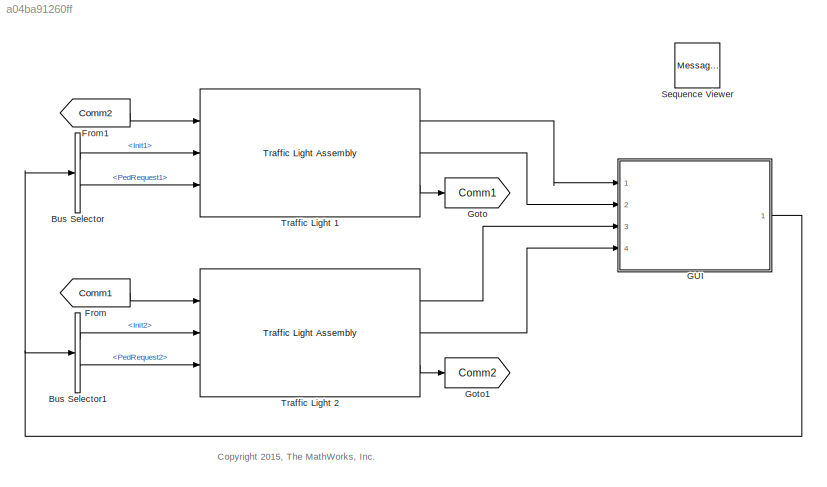
MODEL slx_a04ba91260ff
KIND model
CONFIG AbsTol = auto
CONFIG EnableMultiTasking = on
CONFIG FixedStep = .2
CONFIG InitFcn = tl_gui('reset', bdroot);
CONFIG MaxStep = auto
CONFIG MinStep = auto
CONFIG PostLoadFcn = tl_gui('init', bdroot);
CONFIG RelTol = 1e-3
CONFIG SampleTimeConstraint = Unconstrained
CONFIG Solver = FixedStepDiscrete
CONFIG SolverName = FixedStepDiscrete
CONFIG StartTime = 0.0
CONFIG StopTime = inf
BLOCK [BusSelector] Bus Selector
  OutputAsBus = off
  OutputSignals = Init1,PedRequest1
  Ports = [1, 2]
BLOCK [BusSelector] Bus Selector1
  OutputAsBus = off
  OutputSignals = Init2,PedRequest2
  Ports = [1, 2]
BLOCK [From] From
  GotoTag = Comm1
BLOCK [From] From1
  GotoTag = Comm2
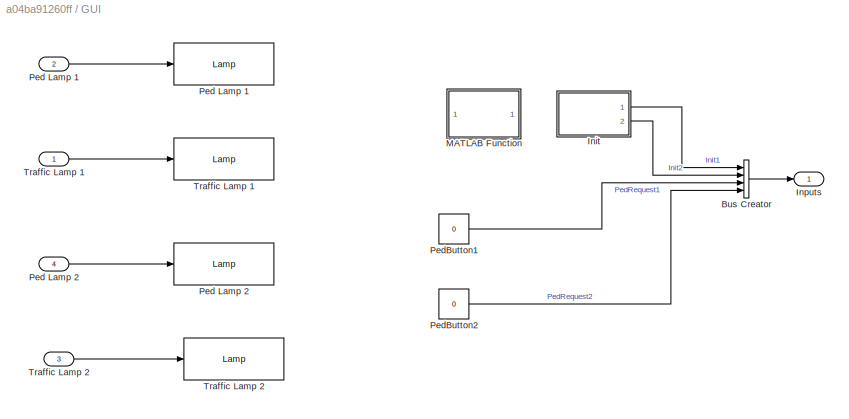
BLOCK [SubSystem] GUI
  Ports = [4, 1]
  RequestExecContextInheritance = off
  Variant = off
BLOCK [Reference] GUI/ Ped Lamp 1  REF=sf_msg_traffic_light_lib/ Lamp  (lib defined in slx_09fa599723ce)
  Ports = [1]
  SourceBlock = sf_msg_traffic_light_lib/ Lamp
  SourceProductBaseCode = SF
  SourceProductName = Stateflow
BLOCK [Reference] GUI/ Ped Lamp 2  REF=sf_msg_traffic_light_lib/ Lamp  (lib defined in slx_09fa599723ce)
  Ports = [1]
  SourceBlock = sf_msg_traffic_light_lib/ Lamp
  SourceProductBaseCode = SF
  SourceProductName = Stateflow
BLOCK [Reference] GUI/ Traffic Lamp 1  REF=sf_msg_traffic_light_lib/ Lamp  (lib defined in slx_09fa599723ce)
  Ports = [1]
  SourceBlock = sf_msg_traffic_light_lib/ Lamp
  SourceProductBaseCode = SF
  SourceProductName = Stateflow
BLOCK [Reference] GUI/ Traffic Lamp 2  REF=sf_msg_traffic_light_lib/ Lamp  (lib defined in slx_09fa599723ce)
  Ports = [1]
  SourceBlock = sf_msg_traffic_light_lib/ Lamp
  SourceProductBaseCode = SF
  SourceProductName = Stateflow
BLOCK [BusCreator] GUI/Bus Creator
  DisplayOption = bar
  InheritFromInputs = on
  Inputs = 4
  Ports = [4, 1]
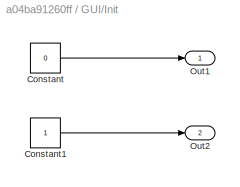
BLOCK [SubSystem] GUI/Init
  Ports = [0, 2]
  RequestExecContextInheritance = off
  Variant = off
BLOCK [Constant] GUI/Init/Constant
  Value = 0
BLOCK [Constant] GUI/Init/Constant1
BLOCK [Outport] GUI/Init/Out1
  IconDisplay = Port number
BLOCK [Outport] GUI/Init/Out2
  IconDisplay = Port number
  Port = 2
BLOCK [Outport] GUI/Inputs
  IconDisplay = Port number
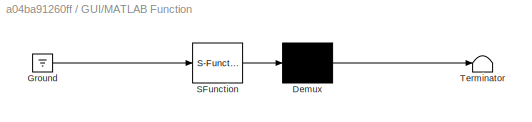
BLOCK [SubSystem] GUI/MATLAB Function
  ErrorFcn = Stateflow.Translate.translate
  PermitHierarchicalResolution = ExplicitOnly
  Ports = []
  RequestExecContextInheritance = off
  SFBlockType = MATLAB Function
  TreatAsAtomicUnit = on
  Variant = off
BLOCK [Demux] GUI/MATLAB Function/ Demux 
  Outputs = 1
  Ports = [1, 1]
BLOCK [Ground] GUI/MATLAB Function/ Ground 
BLOCK [S-Function] GUI/MATLAB Function/ SFunction 
  EnableBusSupport = off
  FunctionName = sf_sfun
  PortCounts = [1 1]
  Ports = [1, 1]
  SFcnIsStateOwnerBlock = off
  SFunctionDeploymentMode = off
  Tag = Stateflow S-Function sf_msg_traffic_light 2
BLOCK [Terminator] GUI/MATLAB Function/ Terminator 
BLOCK [Inport] GUI/Ped Lamp 1
  IconDisplay = Port number
  Port = 2
BLOCK [Inport] GUI/Ped Lamp 2
  IconDisplay = Port number
  Port = 4
BLOCK [Constant] GUI/PedButton1
  Value = 0
BLOCK [Constant] GUI/PedButton2
  Value = 0
BLOCK [Inport] GUI/Traffic Lamp 1
  IconDisplay = Port number
BLOCK [Inport] GUI/Traffic Lamp 2
  IconDisplay = Port number
  Port = 3
BLOCK [Goto] Goto
  GotoTag = Comm1
BLOCK [Goto] Goto1
  GotoTag = Comm2
BLOCK [MessageViewer] Sequence Viewer
BLOCK [Reference] Traffic Light 1  REF=sf_msg_traffic_light_lib/Traffic Light Assembly  (lib defined in slx_09fa599723ce)
  Ports = [3, 3]
  SourceBlock = sf_msg_traffic_light_lib/Traffic Light Assembly
  SourceProductBaseCode = SF
  SourceProductName = Stateflow
  SourceType = SubSystem
BLOCK [Reference] Traffic Light 2  REF=sf_msg_traffic_light_lib/Traffic Light Assembly  (lib defined in slx_09fa599723ce)
  Ports = [3, 3]
  SourceBlock = sf_msg_traffic_light_lib/Traffic Light Assembly
  SourceProductBaseCode = SF
  SourceProductName = Stateflow
  SourceType = SubSystem
ANNOTATION (root): <copyright redacted>
LINE Bus Selector1:1 -> Traffic Light 2:2
LINE Bus Selector1:2 -> Traffic Light 2:3
LINE Bus Selector:1 -> Traffic Light 1:2
LINE Bus Selector:2 -> Traffic Light 1:3
LINE From1:1 -> Traffic Light 1:1
LINE From:1 -> Traffic Light 2:1
LINE GUI/Bus Creator:1 -> GUI/Inputs:1
LINE GUI/Init/Constant1:1 -> GUI/Init/Out2:1
LINE GUI/Init/Constant:1 -> GUI/Init/Out1:1
LINE GUI/Init:1 -> GUI/Bus Creator:1
LINE GUI/Init:2 -> GUI/Bus Creator:2
LINE GUI/Ped Lamp 1:1 -> GUI/ Ped Lamp 1:1
LINE GUI/Ped Lamp 2:1 -> GUI/ Ped Lamp 2:1
LINE GUI/PedButton1:1 -> GUI/Bus Creator:3
LINE GUI/PedButton2:1 -> GUI/Bus Creator:4
LINE GUI/Traffic Lamp 1:1 -> GUI/ Traffic Lamp 1:1
LINE GUI/Traffic Lamp 2:1 -> GUI/ Traffic Lamp 2:1
NET GUI:1 -> Bus Selector1:1, Bus Selector:1
LINE Traffic Light 1:1 -> GUI:1
LINE Traffic Light 1:2 -> GUI:2
LINE Traffic Light 1:3 -> Goto:1
LINE Traffic Light 2:1 -> GUI:3
LINE Traffic Light 2:2 -> GUI:4
LINE Traffic Light 2:3 -> Goto1:1
note: NET lines group one-source signal fan-out (src -> all destinations, sorted); 1:1 wires keep LINE
CHART GUI/MATLAB Function states=1 transitions=1
  STATE_LABEL 'eML_blk_kernel()'
  STATE_LABEL 'SCRIPT:\nfunction pace()\npause(0.2);'
